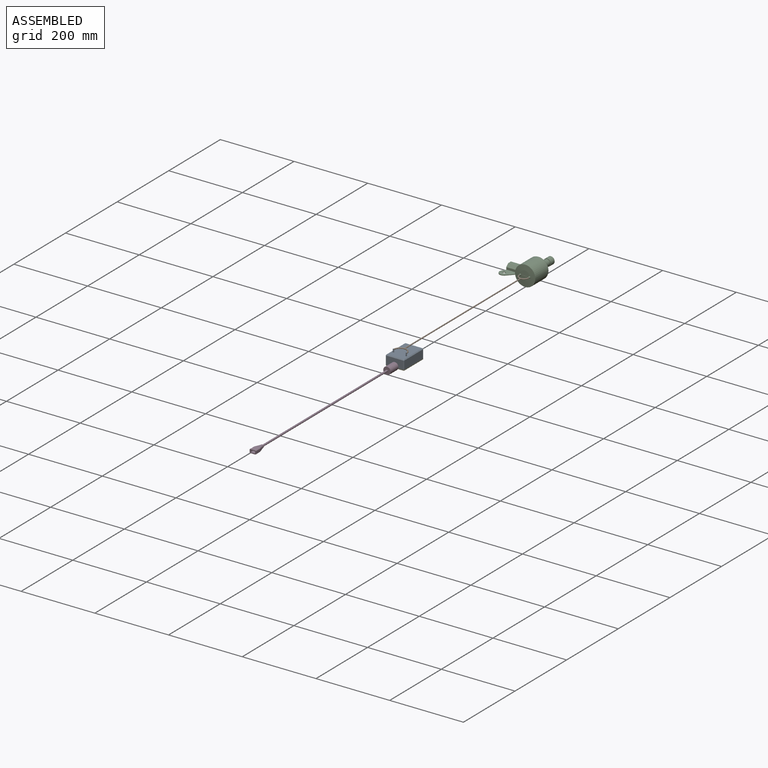
[diagram: assembled view]
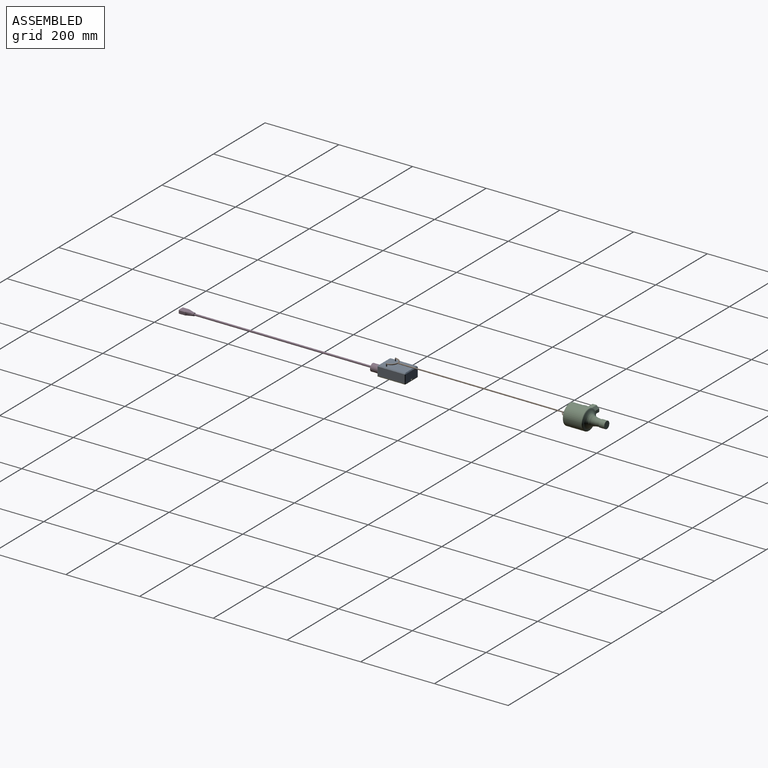
[diagram: assembled view, second angle]
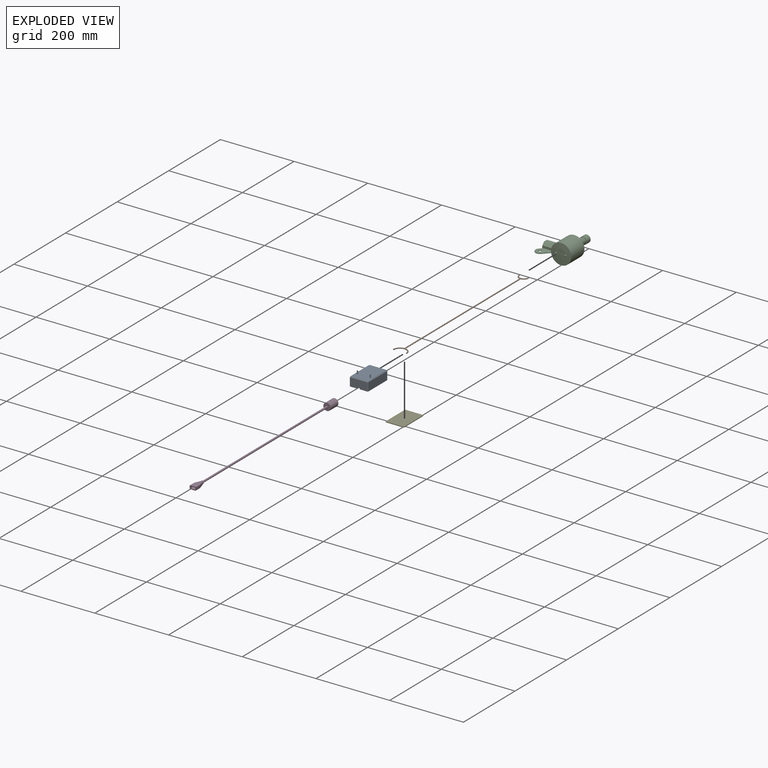
[diagram: exploded view]
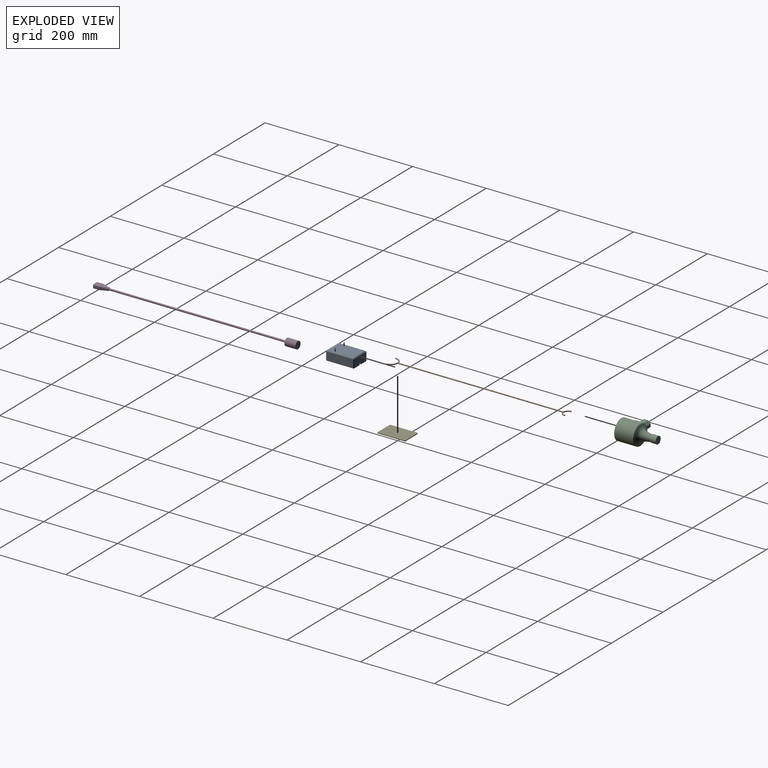
[diagram: exploded view, second angle]
ASSEMBLY  parts=5 mates=4
PART A: 58 faces, bbox 50.4x76.4x33 mm
  f0: cylinder r=1.5mm len=5mm, axis (0,0,-1), area 41mm2, adj f1,f4,f39,f49,f50,f51,f52,f53
  f1: plane 2.83x1mm, normal (0,0,1), area 2.1mm2, adj f0,f53
  f2: cylinder r=1.5mm len=5mm, axis (0,0,-1), area 41mm2, adj f3,f4,f38,f40,f41,f42,f43,f44
  f3: plane 2.83x1mm, normal (0,0,1), area 2.1mm2, adj f2,f44
  f4: plane 72x46mm, normal (0,0,1), area 3295.1mm2, adj f0,f2,f7,f8,f32,f33,f34,f35
  f5: cylinder r=2mm len=22.69mm, axis (0,0,-1), area 71.2mm2, adj f8,f15,f16,f17,f33,f36
  f6: cylinder r=2mm len=22.69mm, axis (0,0,-1), area 71.2mm2, adj f7,f14,f16,f17,f33,f34
  f7: plane 46.17x2.38mm, normal (0,-0.77,0.64), area 137.4mm2, adj f4,f6,f14,f19,f34,f35
  f8: plane 46.17x2.38mm, normal (0,0.77,0.64), area 137.4mm2, adj f4,f5,f9,f15,f36,f37
  f9: cylinder r=2mm len=22.69mm, axis (0,0,-1), area 71.2mm2, adj f8,f10,f15,f18,f32,f37
  f10: plane 76x22.5mm, normal (0,0,-1), area 234mm2, adj f9,f13,f14,f15,f18,f19,f22,f24
  f11: plane 5x2mm, normal (0,0,-1), area 10mm2, adj f12,f13,f15,f28
  f12: plane 3x2mm, normal (-1,0,0), area 6mm2, adj f11,f15,f16,f28
  f13: plane 3x2mm, normal (1,0,0), area 6mm2, adj f10,f11,f15,f28
  f14: plane 46x22.62mm, normal (0,-1,0), area 1025.4mm2, adj f6,f7,f10,f16,f19,f20,f21,f22
  f15: plane 46x22.62mm, normal (0,1,0), area 1025.4mm2, adj f5,f8,f9,f10,f11,f12,f13,f16
  f16: plane 76x22.5mm, normal (0,0,-1), area 234mm2, adj f5,f6,f12,f14,f15,f17,f21,f23
  f17: plane 72x22.62mm, normal (1,0,0), area 1628.4mm2, adj f5,f6,f16,f33
  f18: plane 72x22.62mm, normal (-1,0,0), area 1628.4mm2, adj f9,f10,f19,f32
  f19: cylinder r=2mm len=22.69mm, axis (0,0,-1), area 71.2mm2, adj f7,f10,f14,f18,f32,f35
  f20: plane 5x2mm, normal (0,0,-1), area 10mm2, adj f14,f21,f22,f24
  f21: plane 3x2mm, normal (-1,0,0), area 6mm2, adj f14,f16,f20,f24
  f22: plane 3x2mm, normal (1,0,0), area 6mm2, adj f10,f14,f20,f24
  f23: cylinder r=2mm len=23mm, axis (0,0,-1), area 72.3mm2, adj f16,f24,f30,f31
  f24: plane 42x23mm, normal (0,1,0), area 951mm2, adj f10,f16,f20,f21,f22,f23,f25,f31
  f25: cylinder r=2mm len=23mm, axis (0,0,-1), area 72.3mm2, adj f10,f24,f26,f31
  f26: plane 68x23mm, normal (1,0,0), area 1564mm2, adj f10,f25,f27,f31
  f27: cylinder r=2mm len=23mm, axis (0,0,-1), area 72.3mm2, adj f10,f26,f28,f31
  f28: plane 42x23mm, normal (0,-1,0), area 951mm2, adj f10,f11,f12,f13,f16,f27,f29,f31
  f29: cylinder r=2mm len=23mm, axis (0,0,-1), area 72.3mm2, adj f16,f28,f30,f31
  f30: plane 68x23mm, normal (-1,0,0), area 1564mm2, adj f16,f23,f29,f31
  f31: plane 72x46mm, normal (0,0,-1), area 3308.6mm2, adj f23,f24,f25,f26,f27,f28,f29,f30
  f32: plane 72.17x2.38mm, normal (-0.77,0,0.64), area 218.3mm2, adj f4,f9,f18,f19,f35,f37
  f33: plane 72.17x2.38mm, normal (0.77,0,0.64), area 218.3mm2, adj f4,f5,f6,f17,f34,f36
  f34: cylinder r=2.5mm len=4.11mm, axis (-0.54,0.54,0.64), area 10.4mm2, adj f4,f6,f7,f33
  f35: cylinder r=2.5mm len=4.11mm, axis (-0.54,-0.54,-0.64), area 10.4mm2, adj f4,f7,f19,f32
  f36: cylinder r=2.5mm len=4.11mm, axis (0.54,0.54,-0.64), area 10.4mm2, adj f4,f5,f8,f33
  f37: cylinder r=2.5mm len=4.11mm, axis (0.54,-0.54,0.64), area 10.4mm2, adj f4,f8,f9,f32
  f38: plane 2.83x1mm, normal (0,0,1), area 2.1mm2, adj f2,f43
  f39: plane 2.83x1mm, normal (0,0,1), area 2.1mm2, adj f0,f52
  f40: plane 0.5x0.09mm, normal (0,0,-1), area 0mm2, adj f2,f44,f46
  f41: plane 0.5x0.09mm, normal (0,0,-1), area 0mm2, adj f2,f43,f46
  f42: plane 0.5x0.09mm, normal (0,0,-1), area 0mm2, adj f2,f44,f48
  f43: plane 6x3mm, normal (0,-1,0), area 9.5mm2, adj f2,f38,f41,f45,f46,f47,f48
  f44: plane 6x3mm, normal (0,1,0), area 9.5mm2, adj f2,f3,f40,f42,f46,f47,f48
  f45: plane 0.5x0.09mm, normal (0,0,-1), area 0mm2, adj f2,f43,f48
  f46: plane 6x1mm, normal (1,0,0), area 6mm2, adj f40,f41,f43,f44,f47
  f47: plane 3x1mm, normal (0,0,1), area 3mm2, adj f43,f44,f46,f48
  f48: plane 6x1mm, normal (-1,0,0), area 6mm2, adj f42,f43,f44,f45,f47
  f49: plane 0.5x0.09mm, normal (0,0,-1), area 0mm2, adj f0,f53,f55
  f50: plane 0.5x0.09mm, normal (0,0,-1), area 0mm2, adj f0,f52,f55
  f51: plane 0.5x0.09mm, normal (0,0,-1), area 0mm2, adj f0,f53,f57
  f52: plane 6x3mm, normal (0,-1,0), area 9.5mm2, adj f0,f39,f50,f54,f55,f56,f57
  f53: plane 6x3mm, normal (0,1,0), area 9.5mm2, adj f0,f1,f49,f51,f55,f56,f57
  f54: plane 0.5x0.09mm, normal (0,0,-1), area 0mm2, adj f0,f52,f57
  f55: plane 6x1mm, normal (1,0,0), area 6mm2, adj f49,f50,f52,f53,f56
  f56: plane 3x1mm, normal (0,0,1), area 3mm2, adj f52,f53,f55,f57
  f57: plane 6x1mm, normal (-1,0,0), area 6mm2, adj f51,f52,f53,f54,f56
PART B: 7 faces, bbox 41.1x480x3 mm
  f0: cylinder r=1.5mm len=450mm, axis (0,-1,0), area 4223.8mm2, adj f3,f6
  f1: plane 3x3mm, normal (0,1,0), area 7.1mm2, adj f3
  f2: plane 3x3mm, normal (0,1,0), area 7.1mm2, adj f3
  f3: torus R=12.5mm, axis (0,0,-1), area 361.1mm2, adj f0,f1,f2
  f4: plane 3x3mm, normal (0,-1,0), area 7.1mm2, adj f6
  f5: plane 3x3mm, normal (0,-1,0), area 7.1mm2, adj f6
  f6: torus R=17.5mm, axis (0,0,-1), area 509.1mm2, adj f0,f4,f5
PART C: 25 faces, bbox 95x115.5x55 mm
  f0: cylinder r=27.5mm len=55mm, axis (0,1,0), area 8560.2mm2, adj f1,f5,f10
  f1: bspline ~58.76x55mm, area 4018.3mm2, adj f0,f3
  f2: cylinder r=10mm len=20mm, axis (0,-1,0), area 942.5mm2, adj f3,f4
  f3: plane 20.03x20.03mm, normal (0,1,0), area 86.6mm2, adj f1,f2
  f4: plane 20x20mm, normal (0,-1,0), area 314.2mm2, adj f2
  f5: sphere r=252.83mm, area 2343.6mm2, adj f0,f6,f8
  f6: cylinder r=2.5mm len=5mm, axis (0,-1,0), area 60mm2, adj f5,f7
  f7: plane 5x5mm, normal (0,1,0), area 19.6mm2, adj f6
  f8: cylinder r=2.5mm len=5mm, axis (0,-1,0), area 60mm2, adj f5,f9
  f9: plane 5x5mm, normal (0,1,0), area 19.6mm2, adj f8
  f10: cylinder r=5mm len=10mm, axis (-1,0,0), area 85.7mm2, adj f0,f16
  f11: plane 52.96x37.5mm, normal (0,0,-1), area 1452.2mm2, adj f14,f15,f16,f19,f20,f21,f22,f23
  f12: plane 30x6mm, normal (0,1,0), area 180mm2, adj f15,f16,f17,f24
  f13: plane 30x11mm, normal (0,0,1), area 330mm2, adj f15,f16,f17,f18
  f14: plane 30x8mm, normal (0,-1,0), area 240mm2, adj f11,f15,f16,f18
  f15: plane 26.63x15mm, normal (1,0,0), area 329.3mm2, adj f11,f12,f13,f14,f17,f18,f22,f24
  f16: plane 30.42x15mm, normal (-1,0,0), area 258.3mm2, adj f10,f11,f12,f13,f14,f17,f18,f19
  f17: plane 30x7mm, normal (0,0.71,0.71), area 297mm2, adj f12,f13,f15,f16
  f18: plane 30x7mm, normal (0,-0.71,0.71), area 297mm2, adj f13,f14,f15,f16
  f19: cylinder r=4mm len=2.73mm, axis (0,0,-1), area 6mm2, adj f11,f16,f20,f24
  f20: plane 15.84x14.79mm, normal (-0.73,0.68,0), area 43.3mm2, adj f11,f19,f21,f24
  f21: cylinder r=12.5mm len=22.98mm, axis (0,0,-1), area 84.6mm2, adj f11,f20,f22,f24
  f22: cylinder r=4mm len=3.35mm, axis (0,0,-1), area 8mm2, adj f11,f15,f21,f24
  f23: cylinder r=4mm len=8mm, axis (0,0,-1), area 50.3mm2, adj f11,f24
  f24: plane 37.5x27.96mm, normal (0,0,1), area 702.2mm2, adj f12,f15,f16,f19,f20,f21,f22,f23
PART D: 20 faces, bbox 20.7x550.7x20.7 mm
  f0: plane 17x10mm, normal (0,1,0), area 106.6mm2, adj f7,f8,f9,f10,f11,f12,f13,f14
  f1: cylinder r=2.5mm len=483mm, axis (0,-1,0), area 7586.9mm2, adj f3,f5
  f2: cylinder r=10mm len=30mm, axis (0,-1,0), area 1885mm2, adj f3,f4
  f3: plane 20x20mm, normal (0,1,0), area 294.5mm2, adj f1,f2
  f4: plane 20x20mm, normal (0,-1,0), area 314.2mm2, adj f2
  f5: plane 8.28x8.28mm, normal (0,-1,0), area 30.6mm2, adj f1,f6
  f6: bspline ~20x17mm, area 751.9mm2, adj f5,f7,f8,f9,f10,f11,f12,f13
  f7: plane 17.74x13.74mm, normal (0,0,-1), area 221mm2, adj f0,f6,f8,f14
  f8: cylinder r=2mm len=17mm, axis (0,-1,0), area 53.4mm2, adj f0,f6,f7,f9
  f9: plane 17.2x6.2mm, normal (1,0,0), area 102mm2, adj f0,f6,f8,f10
  f10: cylinder r=2mm len=17mm, axis (0,-1,0), area 53.4mm2, adj f0,f6,f9,f11
  f11: plane 17.74x13.74mm, normal (0,0,1), area 221mm2, adj f0,f6,f10,f12
  f12: cylinder r=2mm len=17mm, axis (0,-1,0), area 53.4mm2, adj f0,f6,f11,f13
  f13: plane 17.2x6.2mm, normal (-1,0,0), area 102mm2, adj f0,f6,f12,f14
  f14: cylinder r=2mm len=17mm, axis (0,-1,0), area 53.4mm2, adj f0,f6,f7,f13
  f15: plane 12x12mm, normal (0,0,1), area 144mm2, adj f0,f16,f18,f19
  f16: plane 12x5mm, normal (1,0,0), area 60mm2, adj f0,f15,f17,f19
  f17: plane 12x12mm, normal (0,0,-1), area 144mm2, adj f0,f16,f18,f19
  f18: plane 12x5mm, normal (-1,0,0), area 60mm2, adj f0,f15,f17,f19
  f19: plane 12x5mm, normal (0,1,0), area 60mm2, adj f15,f16,f17,f18
PART E: 10 faces, bbox 50x76x2 mm
  f0: plane 46x2mm, normal (0,-1,0), area 92mm2, adj f1,f7,f8,f9
  f1: cylinder r=2mm len=2mm, axis (0,0,-1), area 6.3mm2, adj f0,f2,f8,f9
  f2: plane 72x2mm, normal (1,0,0), area 144mm2, adj f1,f3,f8,f9
  f3: cylinder r=2mm len=2mm, axis (0,0,-1), area 6.3mm2, adj f2,f4,f8,f9
  f4: plane 46x2mm, normal (0,1,0), area 92mm2, adj f3,f5,f8,f9
  f5: cylinder r=2mm len=2mm, axis (0,0,-1), area 6.3mm2, adj f4,f6,f8,f9
  f6: plane 72x2mm, normal (-1,0,0), area 144mm2, adj f5,f7,f8,f9
  f7: cylinder r=2mm len=2mm, axis (0,0,-1), area 6.3mm2, adj f0,f6,f8,f9
  f8: plane 76x50mm, normal (0,0,1), area 3796.6mm2, adj f0,f1,f2,f3,f4,f5,f6,f7
  f9: plane 76x50mm, normal (0,0,-1), area 3796.6mm2, adj f0,f1,f2,f3,f4,f5,f6,f7
PLACE A at identity fixed
PLACE B t=(0,225,31.34)mm
PLACE C rot(axis=(0,0,1),180deg) t=(0,467.5,31.34)mm
PLACE D rot(axis=(0,0,-1),180deg) t=(0,-313,3)mm
PLACE E t=(0,0.5,-2)mm
MATE fastened D.f2 <-> A.f14  axis (0,1,0) through (0,-38,3)mm
MATE fastened B.f4 <-> A.f44  axis (0,-1,0) through (-17.5,-17.5,31.34)mm
MATE fastened E.f8 <-> A.f16  axis (0,0,1) through (23,-38,0)mm
MATE fastened C.f6 <-> B.f2  axis (0,-1,0) through (-12.5,462.5,31.34)mm
